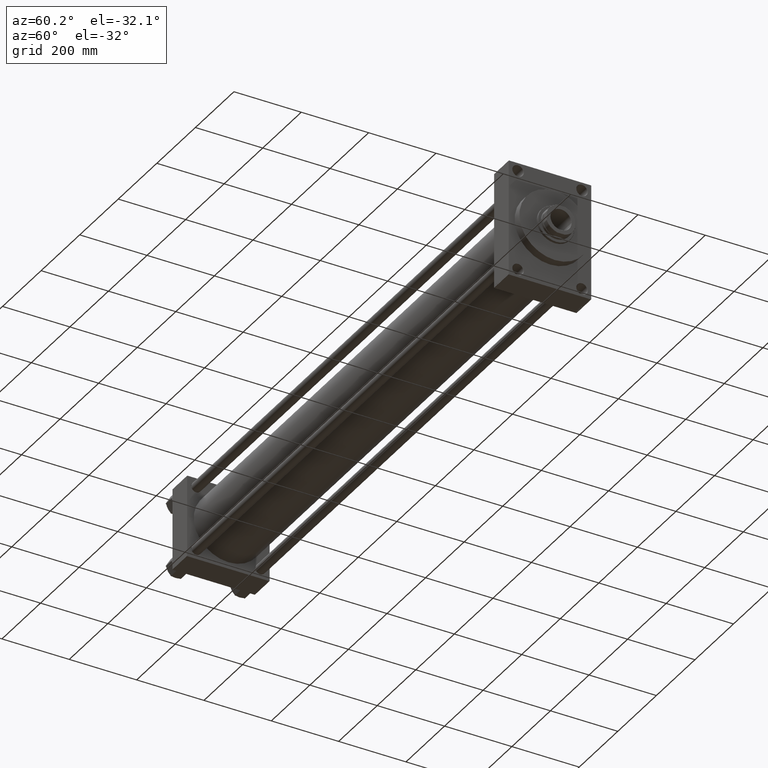
[diagram: clean part render]
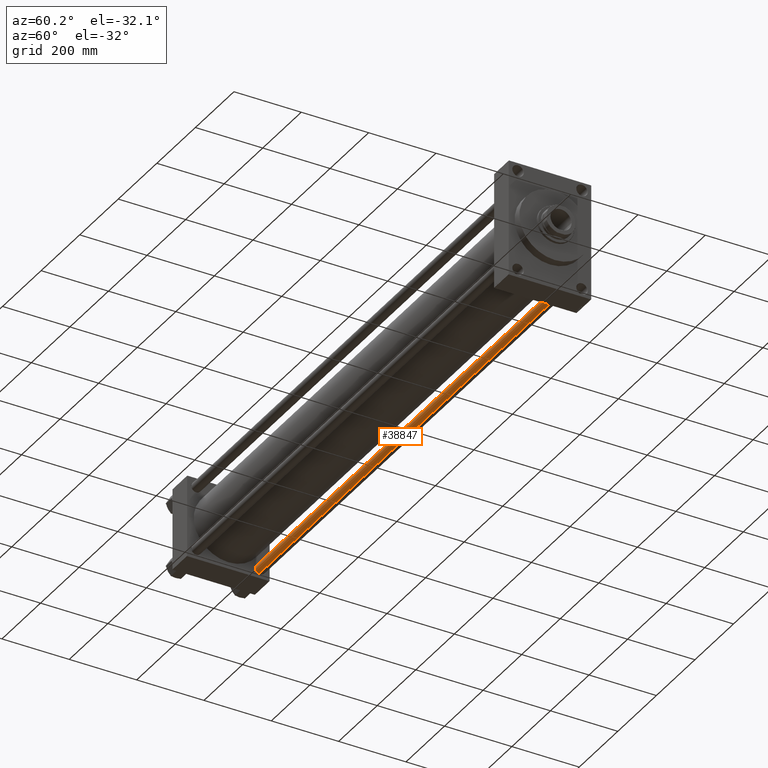
[diagram: same view with one face highlighted and labeled with its STEP entity id]
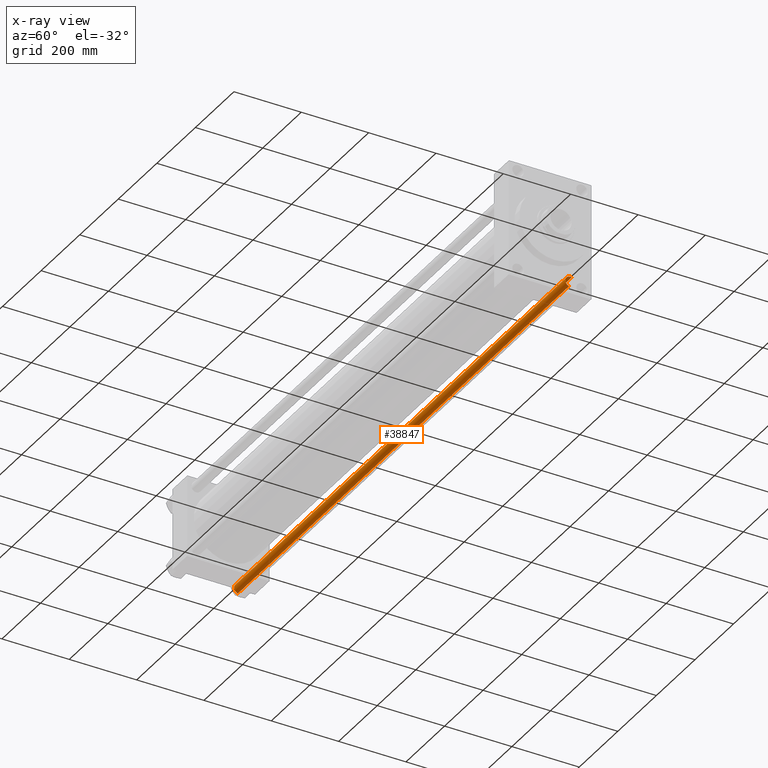
[diagram: x-ray of the same camera — body ghosted, the highlighted face saturated]
A machine part, auxiliary view. The second image highlights one B-rep face of the part: STEP entity #38847.
The next image is the same camera in x-ray: the body ghosted, the highlighted face saturated — about 0% of this face is hidden behind the body in this view.
In plain terms, the highlighted cylindrical surface (edge-blend (fillet) strip) has radius 15 mm, axis along (1, -0, 0).
Its self-contained STEP definition (entity closure, byte-faithful):
#320 = EDGE_CURVE ( 'NONE', #40647, #24406, #44304, .T. ) ;
#1191 = VERTEX_POINT ( 'NONE', #5476 ) ;
#2382 = EDGE_LOOP ( 'NONE', ( #38524, #12851, #3960, #36132 ) ) ;
#2803 = DIRECTION ( 'NONE',  ( 0.000000000000000000, 0.000000000000000000, -1.000000000000000000 ) ) ;
#3093 = VECTOR ( 'NONE', #34270, 1000.000000000000000 ) ;
#3960 = ORIENTED_EDGE ( 'NONE', *, *, #13532, .T. ) ;
#4690 = AXIS2_PLACEMENT_3D ( 'NONE', #35780, #2803, #17468 ) ;
#5476 = CARTESIAN_POINT ( 'NONE',  ( -15.00000000000000000, 0.000000000000000000, 1718.500000000000000 ) ) ;
#5814 = CARTESIAN_POINT ( 'NONE',  ( -15.00000000000000000, 0.000000000000000000, 0.5000000000003890221 ) ) ;
#8031 = CARTESIAN_POINT ( 'NONE',  ( 15.00000000000000000, 1.836970198721029589E-15, 1719.000000000000000 ) ) ;
#10330 = EDGE_CURVE ( 'NONE', #18739, #24406, #29942, .T. ) ;
#11327 = LINE ( 'NONE', #30583, #37009 ) ;
#12175 = EDGE_CURVE ( 'NONE', #18739, #1191, #45418, .T. ) ;
#12851 = ORIENTED_EDGE ( 'NONE', *, *, #12175, .T. ) ;
#13532 = EDGE_CURVE ( 'NONE', #1191, #40647, #11327, .T. ) ;
#15980 = DIRECTION ( 'NONE',  ( -0.000000000000000000, -0.000000000000000000, -1.000000000000000000 ) ) ;
#17468 = DIRECTION ( 'NONE',  ( 1.000000000000000000, 0.000000000000000000, 0.000000000000000000 ) ) ;
#18739 = VERTEX_POINT ( 'NONE', #35321 ) ;
#19113 = DIRECTION ( 'NONE',  ( -1.000000000000000000, 0.000000000000000000, 0.000000000000000000 ) ) ;
#22739 = FACE_OUTER_BOUND ( 'NONE', #2382, .T. ) ;
#24406 = VERTEX_POINT ( 'NONE', #38255 ) ;
#29942 = LINE ( 'NONE', #8031, #3093 ) ;
#30560 = AXIS2_PLACEMENT_3D ( 'NONE', #47100, #44189, #40829 ) ;
#30583 = CARTESIAN_POINT ( 'NONE',  ( -15.00000000000000000, 0.000000000000000000, 1719.000000000000000 ) ) ;
#34270 = DIRECTION ( 'NONE',  ( -0.000000000000000000, -0.000000000000000000, -1.000000000000000000 ) ) ;
#34292 = CYLINDRICAL_SURFACE ( 'NONE', #38020, 15.00000000000000000 ) ;
#35321 = CARTESIAN_POINT ( 'NONE',  ( 15.00000000000000000, 1.836970198721029589E-15, 1718.500000000000000 ) ) ;
#35780 = CARTESIAN_POINT ( 'NONE',  ( 0.000000000000000000, 0.000000000000000000, 1718.500000000000000 ) ) ;
#36132 = ORIENTED_EDGE ( 'NONE', *, *, #320, .T. ) ;
#37009 = VECTOR ( 'NONE', #45278, 1000.000000000000000 ) ;
#38020 = AXIS2_PLACEMENT_3D ( 'NONE', #41054, #15980, #19113 ) ;
#38255 = CARTESIAN_POINT ( 'NONE',  ( 15.00000000000000000, 1.836970198721029589E-15, 0.5000000000003890221 ) ) ;
#38524 = ORIENTED_EDGE ( 'NONE', *, *, #10330, .F. ) ;
#38847 = ADVANCED_FACE ( 'NONE', ( #22739 ), #34292, .T. ) ;
#40647 = VERTEX_POINT ( 'NONE', #5814 ) ;
#40829 = DIRECTION ( 'NONE',  ( 1.000000000000000000, 0.000000000000000000, 0.000000000000000000 ) ) ;
#41054 = CARTESIAN_POINT ( 'NONE',  ( 0.000000000000000000, 0.000000000000000000, 1719.000000000000000 ) ) ;
#44189 = DIRECTION ( 'NONE',  ( -0.000000000000000000, -0.000000000000000000, 1.000000000000000000 ) ) ;
#44304 = CIRCLE ( 'NONE', #30560, 15.00000000000000000 ) ;
#45278 = DIRECTION ( 'NONE',  ( -0.000000000000000000, -0.000000000000000000, -1.000000000000000000 ) ) ;
#45418 = CIRCLE ( 'NONE', #4690, 15.00000000000000000 ) ;
#47100 = CARTESIAN_POINT ( 'NONE',  ( 0.000000000000000000, 0.000000000000000000, 0.5000000000003890221 ) ) ;